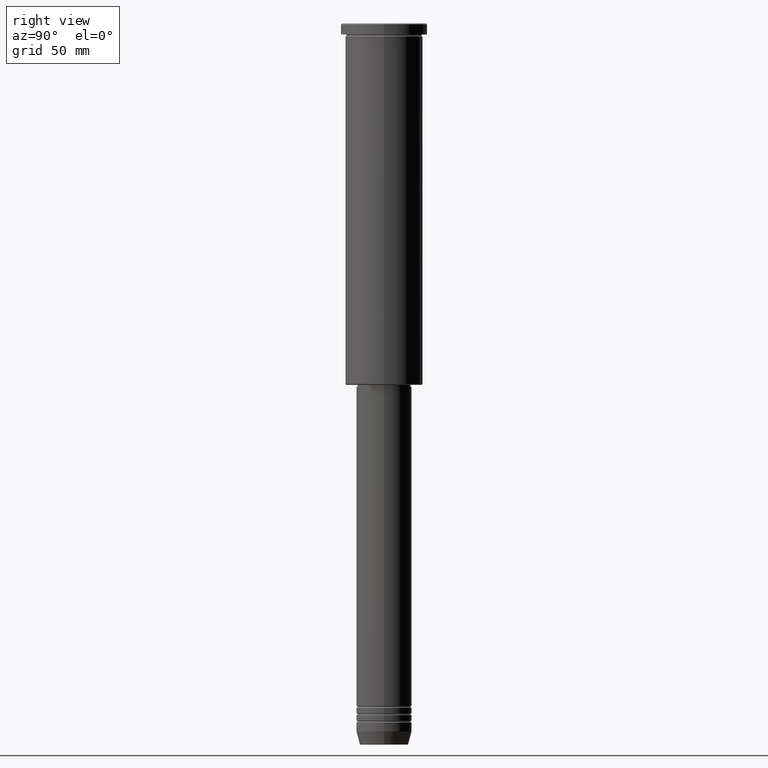
[diagram: clean part render]
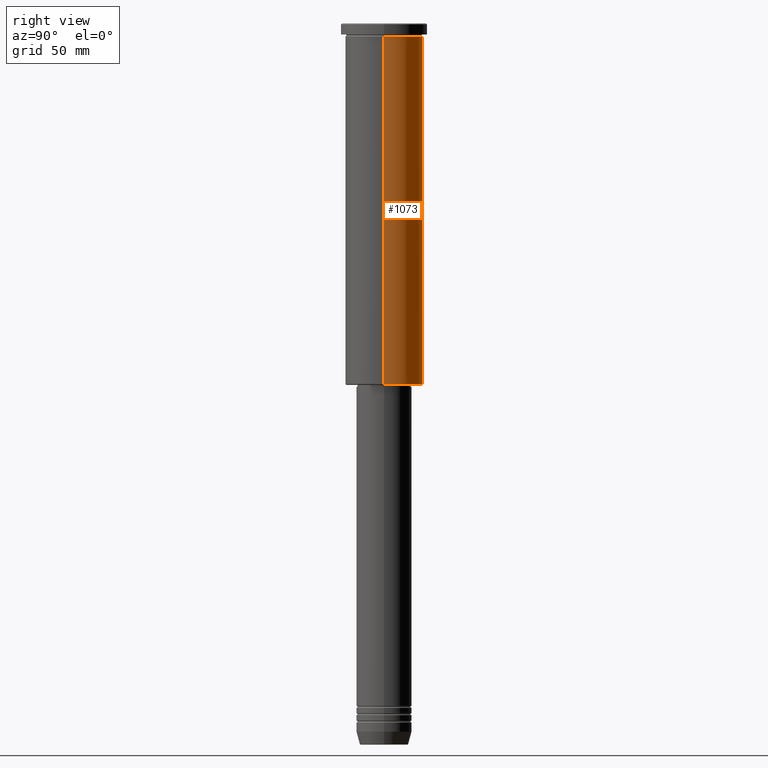
[diagram: same view with one face highlighted and labeled with its STEP entity id]
A machine part, right view. The second image highlights one B-rep face of the part: STEP entity #1073.
In plain terms, the highlighted cylindrical surface (partial cylindrical patch) has radius 21 mm, axis along (-0, -0, 1).
Its self-contained STEP definition (entity closure, byte-faithful):
#68 = CARTESIAN_POINT ( 'NONE',  ( 0.000000000000000000, 0.000000000000000000, -195.5000000000001137 ) ) ;
#69 = VERTEX_POINT ( 'NONE', #873 ) ;
#112 = ORIENTED_EDGE ( 'NONE', *, *, #828, .T. ) ;
#158 = AXIS2_PLACEMENT_3D ( 'NONE', #831, #386, #1099 ) ;
#185 = CYLINDRICAL_SURFACE ( 'NONE', #745, 21.00000000000000000 ) ;
#189 = VERTEX_POINT ( 'NONE', #438 ) ;
#240 = AXIS2_PLACEMENT_3D ( 'NONE', #68, #977, #251 ) ;
#245 = CARTESIAN_POINT ( 'NONE',  ( 21.00000000000000000, 0.000000000000000000, 0.000000000000000000 ) ) ;
#251 = DIRECTION ( 'NONE',  ( -1.000000000000000000, 0.000000000000000000, 0.000000000000000000 ) ) ;
#265 = DIRECTION ( 'NONE',  ( -0.000000000000000000, -0.000000000000000000, 1.000000000000000000 ) ) ;
#279 = FACE_OUTER_BOUND ( 'NONE', #400, .T. ) ;
#386 = DIRECTION ( 'NONE',  ( -0.000000000000000000, -0.000000000000000000, 1.000000000000000000 ) ) ;
#400 = EDGE_LOOP ( 'NONE', ( #112, #538, #947, #1015 ) ) ;
#433 = VERTEX_POINT ( 'NONE', #953 ) ;
#438 = CARTESIAN_POINT ( 'NONE',  ( -21.00000000000000000, 2.571758278209441661E-15, -6.999999999999993783 ) ) ;
#476 = CARTESIAN_POINT ( 'NONE',  ( 0.000000000000000000, 0.000000000000000000, 0.000000000000000000 ) ) ;
#515 = LINE ( 'NONE', #245, #898 ) ;
#538 = ORIENTED_EDGE ( 'NONE', *, *, #783, .T. ) ;
#561 = DIRECTION ( 'NONE',  ( 1.000000000000000000, 0.000000000000000000, 0.000000000000000000 ) ) ;
#604 = CARTESIAN_POINT ( 'NONE',  ( -21.00000000000000000, 2.571758278209441661E-15, -195.5000000000001137 ) ) ;
#623 = CARTESIAN_POINT ( 'NONE',  ( -21.00000000000000000, 2.571758278209441661E-15, 0.000000000000000000 ) ) ;
#657 = CIRCLE ( 'NONE', #240, 21.00000000000000000 ) ;
#682 = EDGE_CURVE ( 'NONE', #433, #69, #515, .T. ) ;
#705 = DIRECTION ( 'NONE',  ( -0.000000000000000000, -0.000000000000000000, 1.000000000000000000 ) ) ;
#745 = AXIS2_PLACEMENT_3D ( 'NONE', #476, #265, #561 ) ;
#758 = VERTEX_POINT ( 'NONE', #604 ) ;
#783 = EDGE_CURVE ( 'NONE', #758, #189, #962, .T. ) ;
#828 = EDGE_CURVE ( 'NONE', #433, #758, #657, .T. ) ;
#831 = CARTESIAN_POINT ( 'NONE',  ( 0.000000000000000000, 0.000000000000000000, -6.999999999999993783 ) ) ;
#873 = CARTESIAN_POINT ( 'NONE',  ( 21.00000000000000000, 0.000000000000000000, -6.999999999999993783 ) ) ;
#886 = DIRECTION ( 'NONE',  ( -0.000000000000000000, -0.000000000000000000, 1.000000000000000000 ) ) ;
#898 = VECTOR ( 'NONE', #705, 1000.000000000000000 ) ;
#947 = ORIENTED_EDGE ( 'NONE', *, *, #1067, .F. ) ;
#953 = CARTESIAN_POINT ( 'NONE',  ( 21.00000000000000000, 0.000000000000000000, -195.5000000000001137 ) ) ;
#962 = LINE ( 'NONE', #623, #980 ) ;
#977 = DIRECTION ( 'NONE',  ( -0.000000000000000000, -0.000000000000000000, 1.000000000000000000 ) ) ;
#980 = VECTOR ( 'NONE', #886, 1000.000000000000000 ) ;
#1015 = ORIENTED_EDGE ( 'NONE', *, *, #682, .F. ) ;
#1067 = EDGE_CURVE ( 'NONE', #69, #189, #1124, .T. ) ;
#1073 = ADVANCED_FACE ( 'NONE', ( #279 ), #185, .T. ) ;
#1099 = DIRECTION ( 'NONE',  ( 1.000000000000000000, 0.000000000000000000, 0.000000000000000000 ) ) ;
#1124 = CIRCLE ( 'NONE', #158, 21.00000000000000000 ) ;